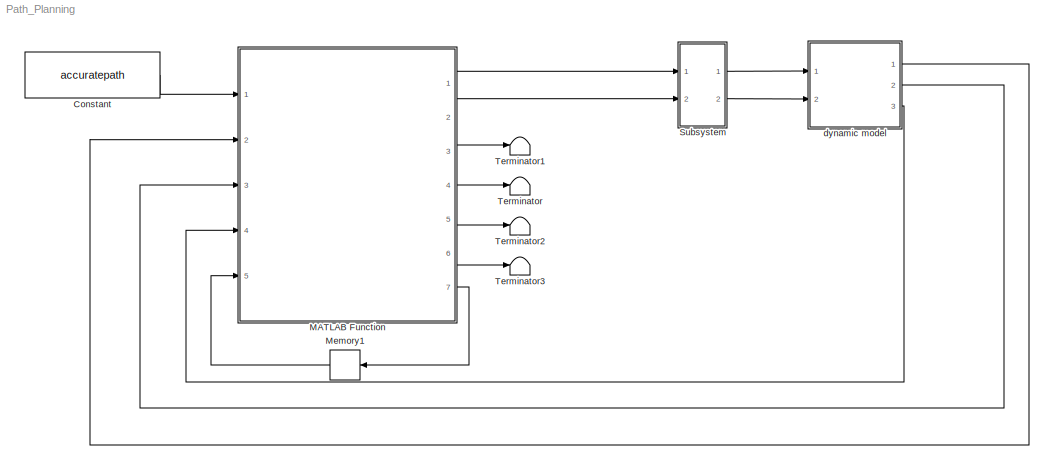
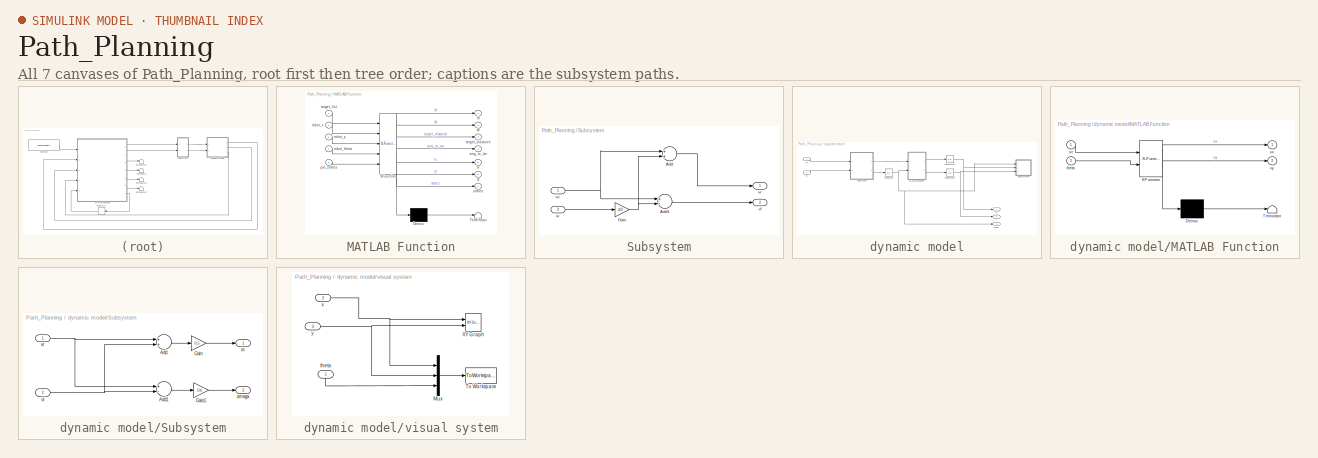
[diagram: thumbnail index - all 7 canvases of the model, root first then tree order]
MODEL Path_Planning
KIND model
BLOCK [Constant] Constant
  SID = 79
  Value = accuratepath
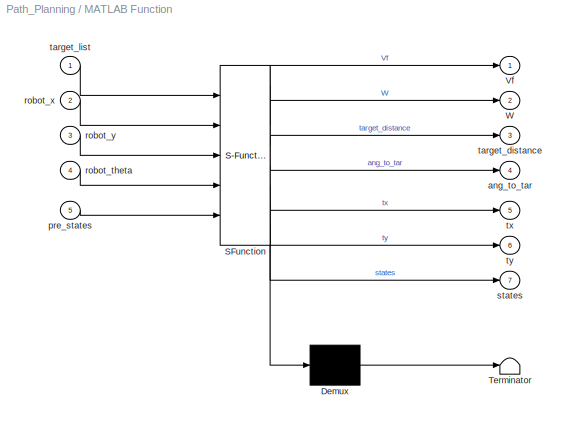
BLOCK [SubSystem] MATLAB Function
  ErrorFcn = Stateflow.Translate.translate
  PermitHierarchicalResolution = ExplicitOnly
  Ports = [5, 7]
  RequestExecContextInheritance = off
  SFBlockType = MATLAB Function
  SID = 61
  TreatAsAtomicUnit = on
BLOCK [Demux] MATLAB Function/ Demux 
  Outputs = 1
  Ports = [1, 1]
  SID = 61::19
BLOCK [S-Function] MATLAB Function/ SFunction 
  EnableBusSupport = on
  FunctionName = sf_sfun
  PortCounts = [5 8]
  Ports = [5, 8]
  SID = 61::18
  Tag = Stateflow S-Function Path_Planning 1
BLOCK [Terminator] MATLAB Function/ Terminator 
  SID = 61::20
BLOCK [Outport] MATLAB Function/Vf
  IconDisplay = Port number
  SID = 61::5
BLOCK [Outport] MATLAB Function/W
  IconDisplay = Port number
  Port = 2
  SID = 61::23
BLOCK [Outport] MATLAB Function/ang_to_tar
  IconDisplay = Port number
  Port = 4
  SID = 61::25
BLOCK [Inport] MATLAB Function/pre_states
  IconDisplay = Port number
  Port = 5
  SID = 61::22
BLOCK [Inport] MATLAB Function/robot_theta
  IconDisplay = Port number
  Port = 4
  SID = 61::29
BLOCK [Inport] MATLAB Function/robot_x
  IconDisplay = Port number
  Port = 2
  SID = 61::21
BLOCK [Inport] MATLAB Function/robot_y
  IconDisplay = Port number
  Port = 3
  SID = 61::28
BLOCK [Outport] MATLAB Function/states
  IconDisplay = Port number
  Port = 7
  SID = 61::27
BLOCK [Outport] MATLAB Function/target_distance
  IconDisplay = Port number
  Port = 3
  SID = 61::24
BLOCK [Inport] MATLAB Function/target_list
  IconDisplay = Port number
  SID = 61::1
BLOCK [Outport] MATLAB Function/tx
  IconDisplay = Port number
  Port = 5
  SID = 61::26
BLOCK [Outport] MATLAB Function/ty
  IconDisplay = Port number
  Port = 6
  SID = 61::30
BLOCK [Memory] Memory1
  SID = 102
  X0 = [1]
BLOCK [SubSystem] Subsystem
  Ports = [2, 2]
  RequestExecContextInheritance = off
  SID = 74
BLOCK [Sum] Subsystem/Add
  InputSameDT = off
  OutDataTypeStr = Inherit: Inherit via internal rule
  Ports = [2, 1]
  SID = 72
  SaturateOnIntegerOverflow = off
BLOCK [Sum] Subsystem/Add1
  InputSameDT = off
  Inputs = +-
  OutDataTypeStr = Inherit: Inherit via internal rule
  Ports = [2, 1]
  SID = 73
  SaturateOnIntegerOverflow = off
BLOCK [Gain] Subsystem/Gain
  Gain = d/2
  OutDataTypeStr = Inherit: Inherit via internal rule
  ParamDataTypeStr = Inherit: Inherit via internal rule
  SID = 71
  SaturateOnIntegerOverflow = off
BLOCK [Inport] Subsystem/vc
  IconDisplay = Port number
  SID = 75
BLOCK [Outport] Subsystem/vl
  IconDisplay = Port number
  Port = 2
  SID = 78
BLOCK [Outport] Subsystem/vr
  IconDisplay = Port number
  SID = 77
BLOCK [Inport] Subsystem/w
  IconDisplay = Port number
  Port = 2
  SID = 76
BLOCK [Terminator] Terminator
  SID = 68
BLOCK [Terminator] Terminator1
  SID = 69
BLOCK [Terminator] Terminator2
  SID = 70
BLOCK [Terminator] Terminator3
  SID = 103
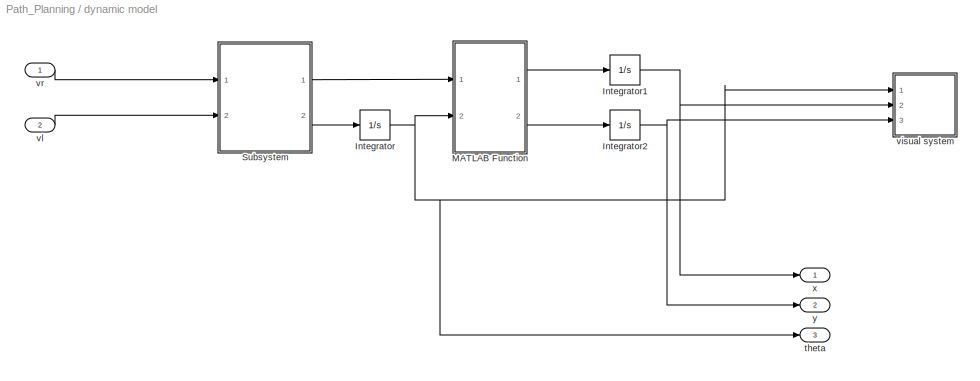
BLOCK [SubSystem] dynamic model
  Ports = [2, 3]
  RequestExecContextInheritance = off
  SID = 44
BLOCK [Integrator] dynamic model/Integrator
  Ports = [1, 1]
  SID = 39
BLOCK [Integrator] dynamic model/Integrator1
  InitialCondition = 0.28
  Ports = [1, 1]
  SID = 40
BLOCK [Integrator] dynamic model/Integrator2
  InitialCondition = 0.28
  Ports = [1, 1]
  SID = 41
BLOCK [SubSystem] dynamic model/MATLAB Function
  ErrorFcn = Stateflow.Translate.translate
  PermitHierarchicalResolution = ExplicitOnly
  Ports = [2, 2]
  RequestExecContextInheritance = off
  SFBlockType = MATLAB Function
  SID = 38
  TreatAsAtomicUnit = on
BLOCK [Demux] dynamic model/MATLAB Function/ Demux 
  Outputs = 1
  Ports = [1, 1]
  SID = 38::19
BLOCK [S-Function] dynamic model/MATLAB Function/ SFunction 
  EnableBusSupport = on
  FunctionName = sf_sfun
  PortCounts = [2 3]
  Ports = [2, 3]
  SID = 38::18
  Tag = Stateflow S-Function Path_Planning 2
BLOCK [Terminator] dynamic model/MATLAB Function/ Terminator 
  SID = 38::20
BLOCK [Inport] dynamic model/MATLAB Function/theta
  IconDisplay = Port number
  Port = 2
  SID = 38::21
BLOCK [Inport] dynamic model/MATLAB Function/vc
  IconDisplay = Port number
  SID = 38::1
BLOCK [Outport] dynamic model/MATLAB Function/vx
  IconDisplay = Port number
  SID = 38::5
BLOCK [Outport] dynamic model/MATLAB Function/vy
  IconDisplay = Port number
  Port = 2
  SID = 38::22
BLOCK [SubSystem] dynamic model/Subsystem
  Ports = [2, 2]
  RequestExecContextInheritance = off
  SID = 29
BLOCK [Sum] dynamic model/Subsystem/Add
  InputSameDT = off
  OutDataTypeStr = Inherit: Inherit via internal rule
  Ports = [2, 1]
  SID = 32
  SaturateOnIntegerOverflow = off
BLOCK [Sum] dynamic model/Subsystem/Add1
  InputSameDT = off
  Inputs = +-
  OutDataTypeStr = Inherit: Inherit via internal rule
  Ports = [2, 1]
  SID = 33
  SaturateOnIntegerOverflow = off
BLOCK [Gain] dynamic model/Subsystem/Gain
  Gain = 0.5
  OutDataTypeStr = Inherit: Inherit via internal rule
  ParamDataTypeStr = Inherit: Inherit via internal rule
  SID = 34
  SaturateOnIntegerOverflow = off
BLOCK [Gain] dynamic model/Subsystem/Gain1
  Gain = 1/d
  OutDataTypeStr = Inherit: Inherit via internal rule
  ParamDataTypeStr = Inherit: Inherit via internal rule
  SID = 35
  SaturateOnIntegerOverflow = off
BLOCK [Outport] dynamic model/Subsystem/omega
  IconDisplay = Port number
  Port = 2
  SID = 37
BLOCK [Outport] dynamic model/Subsystem/vc
  IconDisplay = Port number
  SID = 36
BLOCK [Inport] dynamic model/Subsystem/vl
  IconDisplay = Port number
  Port = 2
  SID = 31
BLOCK [Inport] dynamic model/Subsystem/vr
  IconDisplay = Port number
  SID = 30
BLOCK [Outport] dynamic model/theta
  IconDisplay = Port number
  Port = 3
  SID = 95
BLOCK [SubSystem] dynamic model/visual system
  Ports = [3]
  RequestExecContextInheritance = off
  SID = 57
BLOCK [Mux] dynamic model/visual system/Mux
  DisplayOption = bar
  Inputs = 3
  Ports = [3, 1]
  SID = 54
BLOCK [ToWorkspace] dynamic model/visual system/To Workspace
  FixptAsFi = on
  MaxDataPoints = inf
  Ports = [1]
  SID = 56
  SampleTime = -1
  Save2DSignal = 3-D array (concatenate along third dimension)
  SaveFormat = Structure With Time
  VariableName = real_trajory
BLOCK [Reference] dynamic model/visual system/XY Graph  REF=simulink/Sinks/XY Graph
  Ports = [2]
  SID = 53
  SourceBlock = simulink/Sinks/XY Graph
  SourceType = XY scope.
  st = -1
  xmax = 3
  xmin = -0.3
  ymax = 3
  ymin = -0.3
BLOCK [Inport] dynamic model/visual system/theta
  IconDisplay = Port number
  SID = 58
BLOCK [Inport] dynamic model/visual system/x
  IconDisplay = Port number
  Port = 2
  SID = 59
BLOCK [Inport] dynamic model/visual system/y
  IconDisplay = Port number
  Port = 3
  SID = 60
BLOCK [Inport] dynamic model/vl
  IconDisplay = Port number
  Port = 2
  SID = 46
BLOCK [Inport] dynamic model/vr
  IconDisplay = Port number
  SID = 45
BLOCK [Outport] dynamic model/x
  IconDisplay = Port number
  SID = 93
BLOCK [Outport] dynamic model/y
  IconDisplay = Port number
  Port = 2
  SID = 94
LINE Constant:1 -> MATLAB Function:1
LINE MATLAB Function/ Demux :1 -> MATLAB Function/ Terminator :1
LINE MATLAB Function/ SFunction :1 -> MATLAB Function/ Demux :1
LINE MATLAB Function/ SFunction :2 -> MATLAB Function/Vf:1
LINE MATLAB Function/ SFunction :3 -> MATLAB Function/W:1
LINE MATLAB Function/ SFunction :4 -> MATLAB Function/target_distance:1
LINE MATLAB Function/ SFunction :5 -> MATLAB Function/ang_to_tar:1
LINE MATLAB Function/ SFunction :6 -> MATLAB Function/tx:1
LINE MATLAB Function/ SFunction :7 -> MATLAB Function/ty:1
LINE MATLAB Function/ SFunction :8 -> MATLAB Function/states:1
LINE MATLAB Function/pre_states:1 -> MATLAB Function/ SFunction :5
LINE MATLAB Function/robot_theta:1 -> MATLAB Function/ SFunction :4
LINE MATLAB Function/robot_x:1 -> MATLAB Function/ SFunction :2
LINE MATLAB Function/robot_y:1 -> MATLAB Function/ SFunction :3
LINE MATLAB Function/target_list:1 -> MATLAB Function/ SFunction :1
LINE MATLAB Function:1 -> Subsystem:1
LINE MATLAB Function:2 -> Subsystem:2
LINE MATLAB Function:3 -> Terminator1:1
LINE MATLAB Function:4 -> Terminator:1
LINE MATLAB Function:5 -> Terminator2:1
LINE MATLAB Function:6 -> Terminator3:1
LINE MATLAB Function:7 -> Memory1:1
LINE Memory1:1 -> MATLAB Function:5
LINE Subsystem/Add1:1 -> Subsystem/vl:1
LINE Subsystem/Add:1 -> Subsystem/vr:1
NET Subsystem/Gain:1 -> Subsystem/Add1:2, Subsystem/Add:2
NET Subsystem/vc:1 -> Subsystem/Add1:1, Subsystem/Add:1
LINE Subsystem/w:1 -> Subsystem/Gain:1
LINE Subsystem:1 -> dynamic model:1
LINE Subsystem:2 -> dynamic model:2
NET dynamic model/Integrator1:1 -> dynamic model/visual system:2, dynamic model/x:1
NET dynamic model/Integrator2:1 -> dynamic model/visual system:3, dynamic model/y:1
NET dynamic model/Integrator:1 -> dynamic model/MATLAB Function:2, dynamic model/theta:1, dynamic model/visual system:1
LINE dynamic model/MATLAB Function/ Demux :1 -> dynamic model/MATLAB Function/ Terminator :1
LINE dynamic model/MATLAB Function/ SFunction :1 -> dynamic model/MATLAB Function/ Demux :1
LINE dynamic model/MATLAB Function/ SFunction :2 -> dynamic model/MATLAB Function/vx:1
LINE dynamic model/MATLAB Function/ SFunction :3 -> dynamic model/MATLAB Function/vy:1
LINE dynamic model/MATLAB Function/theta:1 -> dynamic model/MATLAB Function/ SFunction :2
LINE dynamic model/MATLAB Function/vc:1 -> dynamic model/MATLAB Function/ SFunction :1
LINE dynamic model/MATLAB Function:1 -> dynamic model/Integrator1:1
LINE dynamic model/MATLAB Function:2 -> dynamic model/Integrator2:1
LINE dynamic model/Subsystem/Add1:1 -> dynamic model/Subsystem/Gain1:1
LINE dynamic model/Subsystem/Add:1 -> dynamic model/Subsystem/Gain:1
LINE dynamic model/Subsystem/Gain1:1 -> dynamic model/Subsystem/omega:1
LINE dynamic model/Subsystem/Gain:1 -> dynamic model/Subsystem/vc:1
NET dynamic model/Subsystem/vl:1 -> dynamic model/Subsystem/Add1:2, dynamic model/Subsystem/Add:2
NET dynamic model/Subsystem/vr:1 -> dynamic model/Subsystem/Add1:1, dynamic model/Subsystem/Add:1
LINE dynamic model/Subsystem:1 -> dynamic model/MATLAB Function:1
LINE dynamic model/Subsystem:2 -> dynamic model/Integrator:1
LINE dynamic model/visual system/Mux:1 -> dynamic model/visual system/To Workspace:1
LINE dynamic model/visual system/theta:1 -> dynamic model/visual system/Mux:3
NET dynamic model/visual system/x:1 -> dynamic model/visual system/Mux:1, dynamic model/visual system/XY Graph:1
NET dynamic model/visual system/y:1 -> dynamic model/visual system/Mux:2, dynamic model/visual system/XY Graph:2
LINE dynamic model/vl:1 -> dynamic model/Subsystem:2
LINE dynamic model/vr:1 -> dynamic model/Subsystem:1
LINE dynamic model:1 -> MATLAB Function:2
LINE dynamic model:2 -> MATLAB Function:3
LINE dynamic model:3 -> MATLAB Function:4
note: NET lines group one-source signal fan-out (src -> all destinations, sorted); 1:1 wires keep LINE
CHART MATLAB Function states=1 transitions=1
  STATE_LABEL 'eML_blk_kernel()'
CHART dynamic model/MATLAB Function states=1 transitions=1
  STATE_LABEL 'eML_blk_kernel()'
